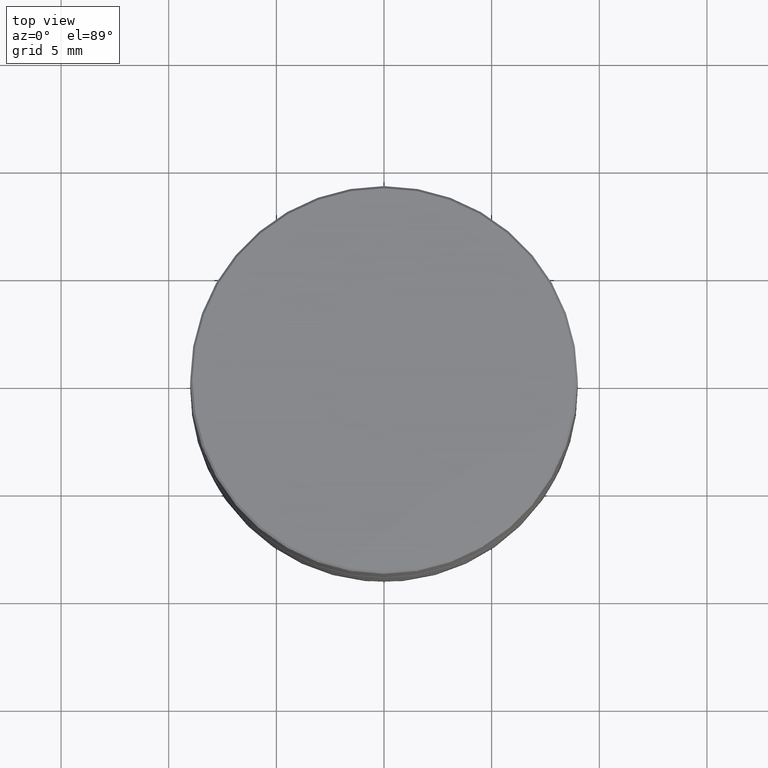
[diagram: clean part render]
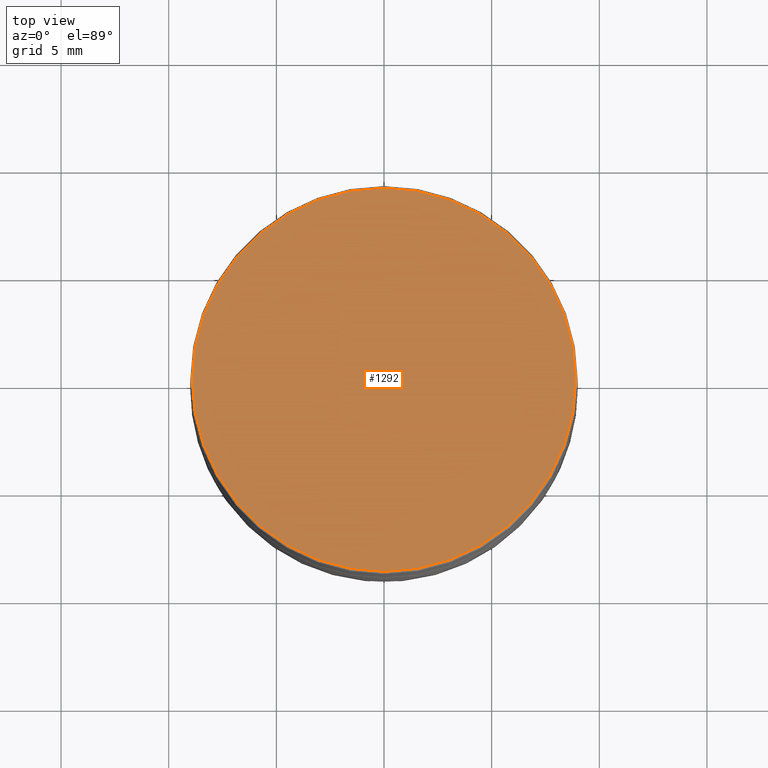
[diagram: same view with one face highlighted and labeled with its STEP entity id]
A machine part, top view. The second image highlights one B-rep face of the part: STEP entity #1292.
In plain terms, the highlighted planar face has unit normal (0, -0, 1).
Its self-contained STEP definition (entity closure, byte-faithful):
#58 = FACE_OUTER_BOUND ( 'NONE', #925, .T. ) ;
#91 = ORIENTED_EDGE ( 'NONE', *, *, #1195, .T. ) ;
#129 = AXIS2_PLACEMENT_3D ( 'NONE', #702, #1069, #200 ) ;
#200 = DIRECTION ( 'NONE',  ( 1.000000000000000000, 0.000000000000000000, 0.000000000000000000 ) ) ;
#366 = VERTEX_POINT ( 'NONE', #845 ) ;
#453 = CIRCLE ( 'NONE', #674, 8.900000000000009237 ) ;
#489 = CARTESIAN_POINT ( 'NONE',  ( -8.900000000000009237, 0.000000000000000000, 0.000000000000000000 ) ) ;
#639 = CIRCLE ( 'NONE', #1235, 8.900000000000009237 ) ;
#643 = DIRECTION ( 'NONE',  ( 1.000000000000000000, 0.000000000000000000, 0.000000000000000000 ) ) ;
#670 = CARTESIAN_POINT ( 'NONE',  ( 0.000000000000000000, 0.000000000000000000, 0.000000000000000000 ) ) ;
#674 = AXIS2_PLACEMENT_3D ( 'NONE', #865, #1265, #643 ) ;
#702 = CARTESIAN_POINT ( 'NONE',  ( 0.000000000000000000, 0.000000000000000000, 0.000000000000000000 ) ) ;
#845 = CARTESIAN_POINT ( 'NONE',  ( 8.900000000000009237, 1.096058885236881233E-15, 0.000000000000000000 ) ) ;
#865 = CARTESIAN_POINT ( 'NONE',  ( 0.000000000000000000, 0.000000000000000000, 0.000000000000000000 ) ) ;
#925 = EDGE_LOOP ( 'NONE', ( #1228, #91 ) ) ;
#1069 = DIRECTION ( 'NONE',  ( 0.000000000000000000, -0.000000000000000000, 1.000000000000000000 ) ) ;
#1160 = DIRECTION ( 'NONE',  ( -0.000000000000000000, -0.000000000000000000, 1.000000000000000000 ) ) ;
#1195 = EDGE_CURVE ( 'NONE', #366, #1425, #639, .T. ) ;
#1228 = ORIENTED_EDGE ( 'NONE', *, *, #1437, .T. ) ;
#1235 = AXIS2_PLACEMENT_3D ( 'NONE', #670, #1160, #1345 ) ;
#1265 = DIRECTION ( 'NONE',  ( -0.000000000000000000, -0.000000000000000000, 1.000000000000000000 ) ) ;
#1292 = ADVANCED_FACE ( 'NONE', ( #58 ), #1321, .T. ) ;
#1321 = PLANE ( 'NONE',  #129 ) ;
#1345 = DIRECTION ( 'NONE',  ( 1.000000000000000000, 0.000000000000000000, 0.000000000000000000 ) ) ;
#1425 = VERTEX_POINT ( 'NONE', #489 ) ;
#1437 = EDGE_CURVE ( 'NONE', #1425, #366, #453, .T. ) ;